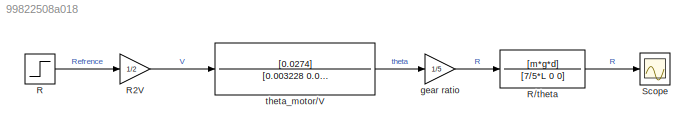
MODEL slx_99822508a018
KIND model
CONFIG AbsTol = auto
CONFIG EnableMultiTasking = off
CONFIG FixedStep = 0.001
CONFIG InitFcn = m = 1   ; % ball weight (kg)\nd = 0.05; % gear rediuce (m)\na = 0.02; % ball rediuce (m)\nL = 1   ; % bar length (m)\ng = 9.8 ; % m/s^2 
CONFIG MaxStep = auto
CONFIG MinStep = auto
CONFIG RelTol = 1e-3
CONFIG SampleTimeConstraint = Unconstrained
CONFIG Solver = ode4
CONFIG SolverName = ode4
CONFIG StartTime = 0.0
CONFIG StopTime = 20
BLOCK [Step] R
  After = 0.5
  SampleTime = 0
  Time = 0
BLOCK [TransferFcn] R//theta
  Denominator = [7/5*L 0 0]
  Numerator = [m*g*d]
BLOCK [Gain] R2V
  Gain = 1/2
BLOCK [Scope] Scope
  Floating = off
  NumInputPorts = 1
  Ports = [1]
  ScopeSpecificationString = Simulink.scopes.TimeScopeBlockCfg('CurrentConfiguration', extmgr.ConfigurationSet(extmgr.Configuration('Core','General UI',true),extmgr.Configuration('Core','Source UI',true),extmgr.Configuration('Sources','WiredSimulink',true),extmgr.Configuration('Visuals','Time Domain',true,'SerializedDisplays',{struct('MinYLimReal','-19.87547','MaxYLimReal','178.87927','YLabelReal','','MinYLimMag','0.00000','M...<+1331ch>
BLOCK [Gain] gear ratio
  Gain = 1/5
BLOCK [TransferFcn] theta_motor//V
  Denominator = [0.003228 0.003508 0]
  Numerator = [0.0274]
LINE R//theta:1 -> Scope:1
LINE R2V:1 -> theta_motor//V:1
LINE R:1 -> R2V:1
LINE gear ratio:1 -> R//theta:1
LINE theta_motor//V:1 -> gear ratio:1
